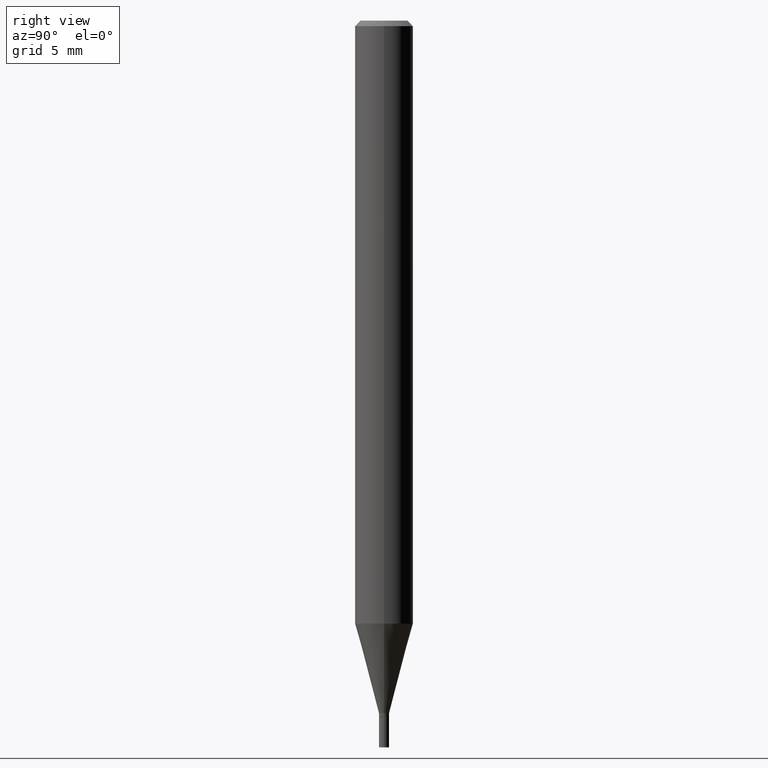
[diagram: clean part render]
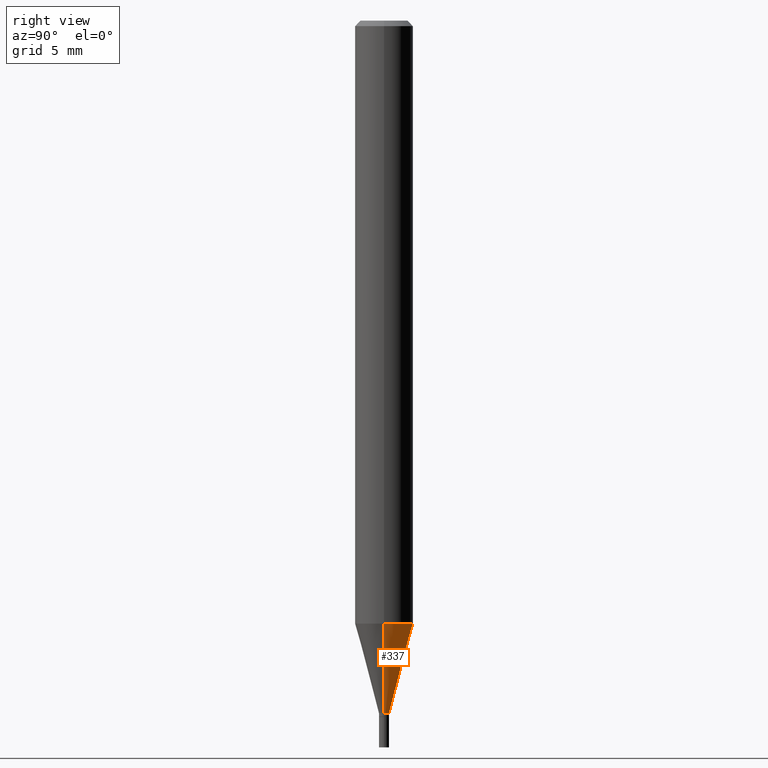
[diagram: same view with one face highlighted and labeled with its STEP entity id]
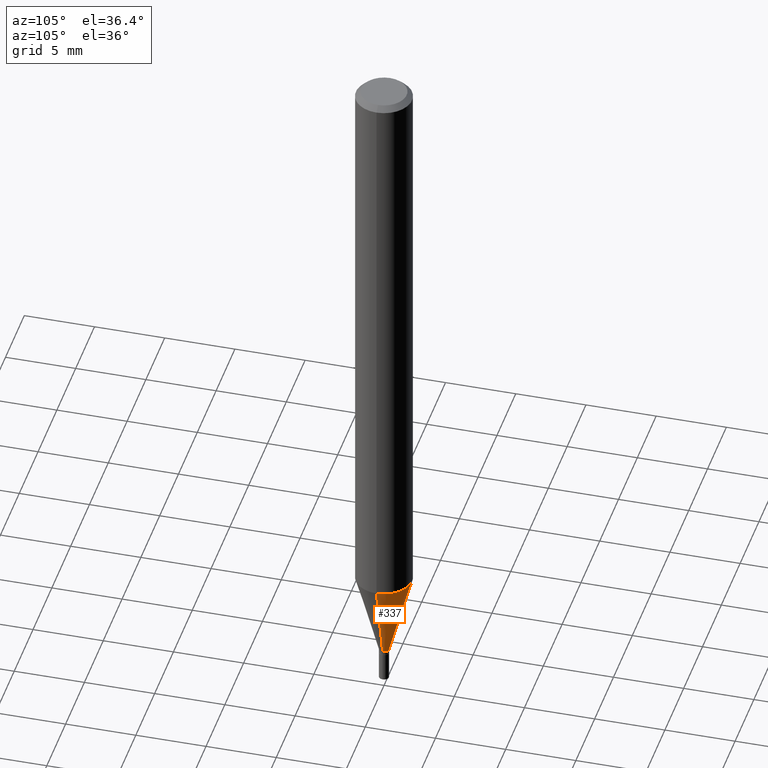
[diagram: same view with one face highlighted and labeled with its STEP entity id]
A machine part, right view. The second image highlights one B-rep face of the part: STEP entity #337.
A second angle (auxiliary view) of the same face is appended — the face is thin or edge-on in the first view.
In plain terms, the highlighted conical surface has half-angle 15 deg.
Its self-contained STEP definition (entity closure, byte-faithful):
#4 = CARTESIAN_POINT ( 'NONE',  ( 0.07875000000000000056, -6.251858007389948925E-15, -1.633103300048402540 ) ) ;
#14 = DIRECTION ( 'NONE',  ( 1.000000000000000000, -6.982962677686274599E-15, 0.000000000000000000 ) ) ;
#19 = EDGE_CURVE ( 'NONE', #68, #347, #266, .T. ) ;
#23 = AXIS2_PLACEMENT_3D ( 'NONE', #65, #67, #420 ) ;
#36 = DIRECTION ( 'NONE',  ( 1.000000000000000000, -6.982962677686261977E-15, 0.000000000000000000 ) ) ;
#39 = CIRCLE ( 'NONE', #296, 0.01380000000000019926 ) ;
#56 = CARTESIAN_POINT ( 'NONE',  ( 4.586476746000223920E-29, -6.548273251000319422E-15, -1.875499999999999945 ) ) ;
#65 = CARTESIAN_POINT ( 'NONE',  ( 4.586476746000223920E-29, -6.548273251000319422E-15, -1.875499999999999945 ) ) ;
#67 = DIRECTION ( 'NONE',  ( -2.445468806185136597E-29, 3.491481338843145583E-15, 1.000000000000000000 ) ) ;
#68 = VERTEX_POINT ( 'NONE', #4 ) ;
#86 = CARTESIAN_POINT ( 'NONE',  ( -0.01380000000000019926, -6.450218353465424562E-15, -1.875499999999999945 ) ) ;
#96 = VERTEX_POINT ( 'NONE', #435 ) ;
#103 = CARTESIAN_POINT ( 'NONE',  ( -0.07875000000000000056, -5.142397292111077566E-15, -1.633103300048402540 ) ) ;
#118 = CONICAL_SURFACE ( 'NONE', #23, 0.01380000000000019926, 0.2617993877991499074 ) ;
#134 = ORIENTED_EDGE ( 'NONE', *, *, #19, .F. ) ;
#137 = VECTOR ( 'NONE', #164, 39.37007874015748854 ) ;
#138 = FACE_OUTER_BOUND ( 'NONE', #428, .T. ) ;
#146 = DIRECTION ( 'NONE',  ( -2.445468806185136597E-29, 3.491481338843145583E-15, 1.000000000000000000 ) ) ;
#157 = LINE ( 'NONE', #86, #137 ) ;
#164 = DIRECTION ( 'NONE',  ( -0.2588190451025211836, 5.211531920934547886E-15, 0.9659258262890679791 ) ) ;
#176 = EDGE_CURVE ( 'NONE', #386, #96, #39, .T. ) ;
#181 = ORIENTED_EDGE ( 'NONE', *, *, #213, .T. ) ;
#213 = EDGE_CURVE ( 'NONE', #96, #347, #157, .T. ) ;
#231 = VECTOR ( 'NONE', #304, 39.37007874015748854 ) ;
#236 = CARTESIAN_POINT ( 'NONE',  ( 0.01380000000000019926, -6.644638135952391152E-15, -1.875499999999999945 ) ) ;
#263 = CARTESIAN_POINT ( 'NONE',  ( 3.993703177546373766E-29, -5.701949696522156368E-15, -1.633103300048402540 ) ) ;
#266 = CIRCLE ( 'NONE', #345, 0.07875000000000000056 ) ;
#275 = ORIENTED_EDGE ( 'NONE', *, *, #176, .T. ) ;
#279 = EDGE_CURVE ( 'NONE', #386, #68, #406, .T. ) ;
#296 = AXIS2_PLACEMENT_3D ( 'NONE', #56, #408, #14 ) ;
#304 = DIRECTION ( 'NONE',  ( 0.2588190451025211836, 1.565188264969622559E-15, 0.9659258262890679791 ) ) ;
#313 = ORIENTED_EDGE ( 'NONE', *, *, #279, .F. ) ;
#337 = ADVANCED_FACE ( 'NONE', ( #138 ), #118, .T. ) ;
#345 = AXIS2_PLACEMENT_3D ( 'NONE', #263, #146, #36 ) ;
#347 = VERTEX_POINT ( 'NONE', #103 ) ;
#386 = VERTEX_POINT ( 'NONE', #456 ) ;
#406 = LINE ( 'NONE', #236, #231 ) ;
#408 = DIRECTION ( 'NONE',  ( -2.445468806185136597E-29, 3.491481338843145583E-15, 1.000000000000000000 ) ) ;
#420 = DIRECTION ( 'NONE',  ( 1.000000000000000000, -6.982962677686274599E-15, 0.000000000000000000 ) ) ;
#428 = EDGE_LOOP ( 'NONE', ( #275, #181, #134, #313 ) ) ;
#435 = CARTESIAN_POINT ( 'NONE',  ( -0.01380000000000019926, -5.796307822788249487E-15, -1.875499999999999945 ) ) ;
#456 = CARTESIAN_POINT ( 'NONE',  ( 0.01380000000000019926, -6.644638135952391152E-15, -1.875499999999999945 ) ) ;